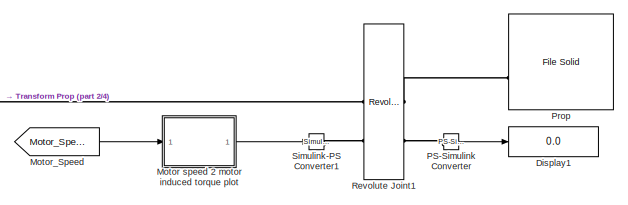
[diagram: root canvas - part 1/4, top center region]
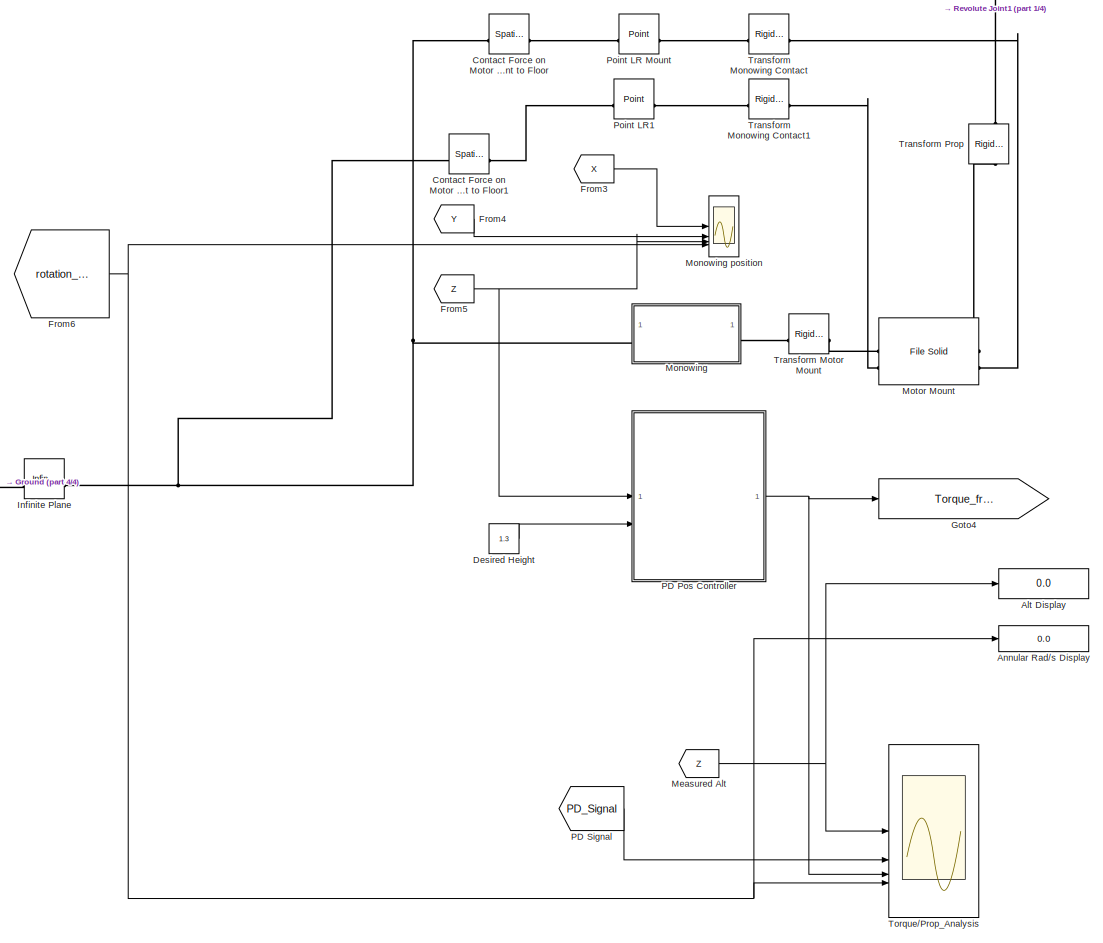
[diagram: root canvas - part 2/4, left side, full height]
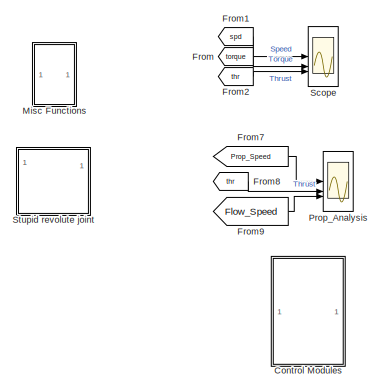
[diagram: root canvas - part 3/4, middle right region]
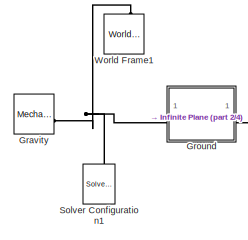
[diagram: root canvas - part 4/4, middle left region]
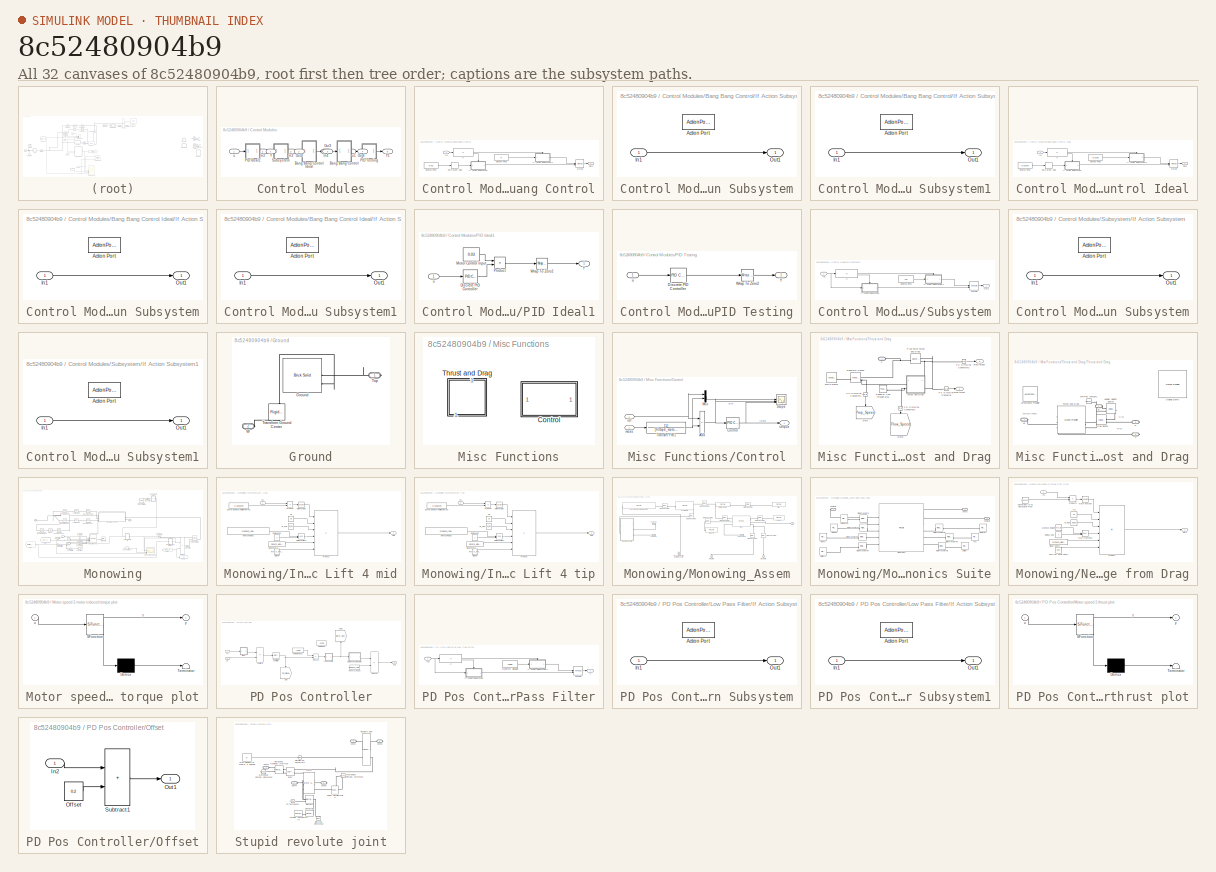
[diagram: thumbnail index - all 32 canvases of the model, root first then tree order]
MODEL slx_8c52480904b9
KIND model
CONFIG AbsTol = 1e-3
CONFIG EnableMultiTasking = off
CONFIG FixedStep = auto
CONFIG MaxStep = 1e-3
CONFIG MinStep = auto
CONFIG RelTol = 1e-3
CONFIG SampleTimeConstraint = Unconstrained
CONFIG SolverName = ode23t
CONFIG StartTime = 0.0
CONFIG StopTime = 10
BLOCK [Display] Alt Display
  Decimation = 1
BLOCK [Display] Annular Rad//s Display
  Decimation = 1
BLOCK [Reference] Contact Force on Motor Mount to Floor  REF=sm_lib/Forces and
Torques/Spatial
Contact Force
  NameLocation = top
  SourceBlock = sm_lib/Forces and\nTorques/Spatial\nContact Force
  SourceType = Spatial\nContact Force
BLOCK [Reference] Contact Force on Motor Mount to Floor1  REF=sm_lib/Forces and
Torques/Spatial
Contact Force
  Commented = on
  NameLocation = top
  SourceBlock = sm_lib/Forces and\nTorques/Spatial\nContact Force
  SourceType = Spatial\nContact Force
BLOCK [SubSystem] Control Modules
BLOCK [SubSystem] Control Modules/Bang Bang Control
BLOCK [SubSystem] Control Modules/Bang Bang Control Ideal
BLOCK [Constant] Control Modules/Bang Bang Control Ideal/Desired RPS1
  Value = -0.01475
BLOCK [Constant] Control Modules/Bang Bang Control Ideal/Desired RPS2
  Value = -0.0145
BLOCK [If] Control Modules/Bang Bang Control Ideal/If
  IfExpression = u1 > 1
BLOCK [SubSystem] Control Modules/Bang Bang Control Ideal/If Action Subsystem
  TreatAsAtomicUnit = on
BLOCK [ActionPort] Control Modules/Bang Bang Control Ideal/If Action Subsystem/Action Port
  ActionPortLabel = else
BLOCK [Inport] Control Modules/Bang Bang Control Ideal/If Action Subsystem/In1
BLOCK [Outport] Control Modules/Bang Bang Control Ideal/If Action Subsystem/Out1
BLOCK [SubSystem] Control Modules/Bang Bang Control Ideal/If Action Subsystem1
  TreatAsAtomicUnit = on
BLOCK [ActionPort] Control Modules/Bang Bang Control Ideal/If Action Subsystem1/Action Port
  ActionPortLabel = if(u1 > 1)
BLOCK [Inport] Control Modules/Bang Bang Control Ideal/If Action Subsystem1/In1
BLOCK [Outport] Control Modules/Bang Bang Control Ideal/If Action Subsystem1/Out1
BLOCK [Inport] Control Modules/Bang Bang Control Ideal/In1
BLOCK [Merge] Control Modules/Bang Bang Control Ideal/Merge
BLOCK [Outport] Control Modules/Bang Bang Control Ideal/Out1
BLOCK [ZeroOrderHold] Control Modules/Bang Bang Control Ideal/Zero-Order Hold
  SampleTime = -1
BLOCK [Constant] Control Modules/Bang Bang Control/Desired RPS1
  Value = -0.02
BLOCK [Constant] Control Modules/Bang Bang Control/Desired RPS2
  Value = 0
BLOCK [If] Control Modules/Bang Bang Control/If
  IfExpression = u1 > 1
BLOCK [SubSystem] Control Modules/Bang Bang Control/If Action Subsystem
  TreatAsAtomicUnit = on
BLOCK [ActionPort] Control Modules/Bang Bang Control/If Action Subsystem/Action Port
  ActionPortLabel = else
BLOCK [Inport] Control Modules/Bang Bang Control/If Action Subsystem/In1
BLOCK [Outport] Control Modules/Bang Bang Control/If Action Subsystem/Out1
BLOCK [SubSystem] Control Modules/Bang Bang Control/If Action Subsystem1
  TreatAsAtomicUnit = on
BLOCK [ActionPort] Control Modules/Bang Bang Control/If Action Subsystem1/Action Port
  ActionPortLabel = if(u1 > 1)
BLOCK [Inport] Control Modules/Bang Bang Control/If Action Subsystem1/In1
BLOCK [Outport] Control Modules/Bang Bang Control/If Action Subsystem1/Out1
BLOCK [Inport] Control Modules/Bang Bang Control/In1
BLOCK [Merge] Control Modules/Bang Bang Control/Merge
BLOCK [Outport] Control Modules/Bang Bang Control/Out1
BLOCK [ZeroOrderHold] Control Modules/Bang Bang Control/Zero-Order Hold
  SampleTime = -1
BLOCK [Inport] Control Modules/In2
  Port = 2
BLOCK [Inport] Control Modules/In3
  Port = 3
BLOCK [Inport] Control Modules/In4
  Port = 4
BLOCK [Outport] Control Modules/Out2
  Port = 2
BLOCK [Outport] Control Modules/Out3
  Port = 3
BLOCK [Outport] Control Modules/Out4
  Port = 4
BLOCK [SubSystem] Control Modules/PID Ideal1
BLOCK [Reference] Control Modules/PID Ideal1/Discrete PID Controller  REF=slpidlib/PID Controller
  LibrarySourceBlock = simulink/Discrete/Discrete PID Controller
  SourceBlock = slpidlib/PID Controller
  SourceType = PID 1dof
BLOCK [Constant] Control Modules/PID Ideal1/Motor Control Input
  Value = 0.03
BLOCK [Product] Control Modules/PID Ideal1/Product
BLOCK [Reference] Control Modules/PID Ideal1/Wrap To Zero2  REF=simulink/Discontinuities/Wrap To Zero
  SourceBlock = simulink/Discontinuities/Wrap To Zero
  SourceType = Wrap To Zero
BLOCK [Outport] Control Modules/PID Ideal1/Y
BLOCK [Inport] Control Modules/PID Ideal1/u
BLOCK [SubSystem] Control Modules/PID Testing
BLOCK [Reference] Control Modules/PID Testing/Discrete PID Controller  REF=slpidlib/PID Controller
  LibrarySourceBlock = simulink/Discrete/Discrete PID Controller
  SourceBlock = slpidlib/PID Controller
  SourceType = PID 1dof
BLOCK [Reference] Control Modules/PID Testing/Wrap To Zero2  REF=simulink/Discontinuities/Wrap To Zero
  SourceBlock = simulink/Discontinuities/Wrap To Zero
  SourceType = Wrap To Zero
BLOCK [Outport] Control Modules/PID Testing/Y
BLOCK [Inport] Control Modules/PID Testing/u
BLOCK [SubSystem] Control Modules/Subsystem
BLOCK [Constant] Control Modules/Subsystem/Desired RPS1
  Value = -10
BLOCK [If] Control Modules/Subsystem/If
  IfExpression = u1<(-40)
BLOCK [SubSystem] Control Modules/Subsystem/If Action Subsystem
  TreatAsAtomicUnit = on
BLOCK [ActionPort] Control Modules/Subsystem/If Action Subsystem/Action Port
  ActionPortLabel = else
BLOCK [Inport] Control Modules/Subsystem/If Action Subsystem/In1
BLOCK [Outport] Control Modules/Subsystem/If Action Subsystem/Out1
BLOCK [SubSystem] Control Modules/Subsystem/If Action Subsystem1
  TreatAsAtomicUnit = on
BLOCK [ActionPort] Control Modules/Subsystem/If Action Subsystem1/Action Port
  ActionPortLabel = if(u1<(-40))
BLOCK [Inport] Control Modules/Subsystem/If Action Subsystem1/In1
BLOCK [Outport] Control Modules/Subsystem/If Action Subsystem1/Out1
BLOCK [Inport] Control Modules/Subsystem/In2
BLOCK [Merge] Control Modules/Subsystem/Merge
BLOCK [Outport] Control Modules/Subsystem/Out1
BLOCK [Outport] Control Modules/Y
BLOCK [Outport] Control Modules/Y1
  Port = 5
BLOCK [Inport] Control Modules/u
BLOCK [Inport] Control Modules/u1
  Port = 5
BLOCK [Constant] Desired Height
  Value = 1.3
BLOCK [Display] Display1
  Decimation = 1
BLOCK [From] From
  GotoTag = torque
BLOCK [From] From1
  GotoTag = spd
BLOCK [From] From2
  GotoTag = thr
BLOCK [From] From3
  GotoTag = X
  TagVisibility = global
BLOCK [From] From4
  GotoTag = Y
  TagVisibility = global
BLOCK [From] From5
  GotoTag = Z
  TagVisibility = global
BLOCK [From] From6
  GotoTag = rotation_abt_z
  TagVisibility = global
BLOCK [From] From7
  GotoTag = Prop_Speed
BLOCK [From] From8
  GotoTag = thr
BLOCK [From] From9
  GotoTag = Flow_Speed
BLOCK [Goto] Goto4
  GotoTag = Torque_from_Motor
  TagVisibility = global
BLOCK [Reference] Gravity  REF=sm_lib/Utilities/Mechanism
Configuration
  SourceBlock = sm_lib/Utilities/Mechanism\nConfiguration
  SourceType = Mechanism\nConfiguration
BLOCK [SubSystem] Ground
BLOCK [Reference] Ground/Ground  REF=sm_lib/Body Elements/Brick Solid
  SourceBlock = sm_lib/Body Elements/Brick Solid
  SourceType = Brick Solid
BLOCK [PMIOPort] Ground/Top
  Side = Right
BLOCK [Reference] Ground/Transform Ground Center  REF=sm_lib/Frames and
Transforms/Rigid
Transform
  NameLocation = right
  SourceBlock = sm_lib/Frames and\nTransforms/Rigid\nTransform
  SourceType = Rigid\nTransform
BLOCK [PMIOPort] Ground/W
  Port = 2
  Side = Left
BLOCK [Reference] Infinite Plane  REF=sm_lib/Curves and Surfaces/Infinite Plane
  SourceBlock = sm_lib/Curves and Surfaces/Infinite Plane
  SourceType = Infinite Plane
BLOCK [From] Measured Alt
  GotoTag = Z
  TagVisibility = global
BLOCK [SubSystem] Misc Functions
BLOCK [SubSystem] Misc Functions/Control
  Commented = on
  NameLocation = top
BLOCK [Sum] Misc Functions/Control/Add
  IconShape = rectangular
  Inputs = +-
BLOCK [Reference] Misc Functions/Control/Control  REF=slpidlib/PID Controller
  SourceBlock = slpidlib/PID Controller
  SourceType = PID 1dof
BLOCK [Mux] Misc Functions/Control/Mux
  DisplayOption = bar
  Inputs = 2
BLOCK [Scope] Misc Functions/Control/Scope
  Floating = off
  NumInputPorts = 3
  ScopeSpecificationString = Simulink.scopes.TimeScopeBlockCfg('CurrentConfiguration', extmgr.ConfigurationSet(extmgr.Configuration('Core','General UI',true),extmgr.Configuration('Core','Source UI',true),extmgr.Configuration('Sources','WiredSimulink',true,'DataLoggingVariableName','ScopeData3'),extmgr.Configuration('Visuals','Time Domain',true,'SerializedDisplays',{struct('MinYLimReal','-51413.90485','MaxYLimReal','107953.943...<+2752ch>
BLOCK [TransferFcn] Misc Functions/Control/Transfer Fcn1
  Denominator = [filtSpd_motor 1]
  ParameterTunability = Optimized
BLOCK [Inport] Misc Functions/Control/meas
  Port = 2
BLOCK [Inport] Misc Functions/Control/ref
BLOCK [Outport] Misc Functions/Control/torque
BLOCK [SubSystem] Misc Functions/Thrust and Drag
  Commented = on
  NameLocation = left
BLOCK [PMIOPort] Misc Functions/Thrust and Drag/F
  Side = Left
BLOCK [Goto] Misc Functions/Thrust and Drag/Goto
  GotoTag = Prop_Speed
  NameLocation = left
  TagVisibility = global
BLOCK [Goto] Misc Functions/Thrust and Drag/Goto1
  GotoTag = Flow_Speed
  NameLocation = left
  TagVisibility = global
BLOCK [Reference] Misc Functions/Thrust and Drag/PS-Simulink Converter  REF=nesl_utility/PS-Simulink
Converter
  SourceBlock = nesl_utility/PS-Simulink\nConverter
  SourceType = PS-Simulink\nConverter
BLOCK [Reference] Misc Functions/Thrust and Drag/PS-Simulink Converter1  REF=nesl_utility/PS-Simulink
Converter
  NameLocation = left
  SourceBlock = nesl_utility/PS-Simulink\nConverter
  SourceType = PS-Simulink\nConverter
BLOCK [Reference] Misc Functions/Thrust and Drag/PS-Simulink Converter2  REF=nesl_utility/PS-Simulink
Converter
  NameLocation = left
  SourceBlock = nesl_utility/PS-Simulink\nConverter
  SourceType = PS-Simulink\nConverter
BLOCK [Reference] Misc Functions/Thrust and Drag/PS-Simulink Converter3  REF=nesl_utility/PS-Simulink
Converter
  SourceBlock = nesl_utility/PS-Simulink\nConverter
  SourceType = PS-Simulink\nConverter
BLOCK [Reference] Misc Functions/Thrust and Drag/Prop Force Thrust and Drag  REF=sm_lib/Forces and
Torques/External Force
and Torque
  Commented = on
  SourceBlock = sm_lib/Forces and\nTorques/External Force\nand Torque
  SourceType = External Force\nand Torque
BLOCK [Reference] Misc Functions/Thrust and Drag/Speed of flow through prop  REF=fl_lib/Physical Signals/Sources/PS Constant
  SourceBlock = fl_lib/Physical Signals/Sources/PS Constant
  SourceType = PS Constant
BLOCK [SubSystem] Misc Functions/Thrust and Drag/Thrust and Drag
  AncestorBlock = quadcopter_library/Propeller/Thrust and Drag
  LibrarySourceBlock = quadcopter_library/Propeller/Thrust and Drag
BLOCK [Reference] Misc Functions/Thrust and Drag/Thrust and Drag/Aerodynamic Propeller  REF=sdl_lib/Engines & Motors/Aerodynamic
Propeller
  Commented = on
  NameLocation = top
  SourceBlock = sdl_lib/Engines & Motors/Aerodynamic\nPropeller
  SourceType = Aerodynamic\nPropeller
BLOCK [Reference] Misc Functions/Thrust and Drag/Thrust and Drag/Angular Velocity Source  REF=fl_lib/Mechanical/Mechanical Sources/Ideal Angular
Velocity Source
  NameLocation = top
  SourceBlock = fl_lib/Mechanical/Mechanical Sources/Ideal Angular\nVelocity Source
  SourceType = Ideal Angular\nVelocity Source
BLOCK [Reference] Misc Functions/Thrust and Drag/Thrust and Drag/Drag Sensor  REF=fl_lib/Mechanical/Mechanical Sensors/Ideal Torque Sensor
  SourceBlock = fl_lib/Mechanical/Mechanical Sensors/Ideal Torque Sensor
  SourceType = Ideal Torque Sensor
BLOCK [Reference] Misc Functions/Thrust and Drag/Thrust and Drag/MRRef IPMSM1  REF=fl_lib/Mechanical/Rotational Elements/Mechanical
Rotational Reference
  SourceBlock = fl_lib/Mechanical/Rotational Elements/Mechanical\nRotational Reference
  SourceType = Mechanical\nRotational Reference
BLOCK [Reference] Misc Functions/Thrust and Drag/Thrust and Drag/Original Demo  REF=sdl_lib/Engines & Motors/Marine Propeller
  Commented = on
  SourceBlock = sdl_lib/Engines & Motors/Marine Propeller
  SourceType = Marine Propeller
BLOCK [PMIOPort] Misc Functions/Thrust and Drag/Thrust and Drag/Q
  Port = 3
  Side = Right
BLOCK [Reference] Misc Functions/Thrust and Drag/Thrust and Drag/Thrust and Drag  REF=sdl_lib/Engines & Motors/Marine Propeller
  SourceBlock = sdl_lib/Engines & Motors/Marine Propeller
  SourceType = Marine Propeller
BLOCK [PMIOPort] Misc Functions/Thrust and Drag/Thrust and Drag/Va
  Port = 2
  Side = Left
BLOCK [PMIOPort] Misc Functions/Thrust and Drag/Thrust and Drag/t
  Port = 4
  Side = Right
BLOCK [PMIOPort] Misc Functions/Thrust and Drag/Thrust and Drag/w
  NameLocation = top
  Side = Left
BLOCK [Reference] Misc Functions/Thrust and Drag/Transform Sensor  REF=sm_lib/Frames and
Transforms/Transform
Sensor
  SourceBlock = sm_lib/Frames and\nTransforms/Transform\nSensor
  SourceType = Transform\nSensor
BLOCK [Reference] Misc Functions/Thrust and Drag/World Frame  REF=sm_lib/Frames and
Transforms/World Frame
  SourceBlock = sm_lib/Frames and\nTransforms/World Frame
  SourceType = World Frame
BLOCK [Outport] Misc Functions/Thrust and Drag/prop thrust
BLOCK [Outport] Misc Functions/Thrust and Drag/prop torque
  Port = 2
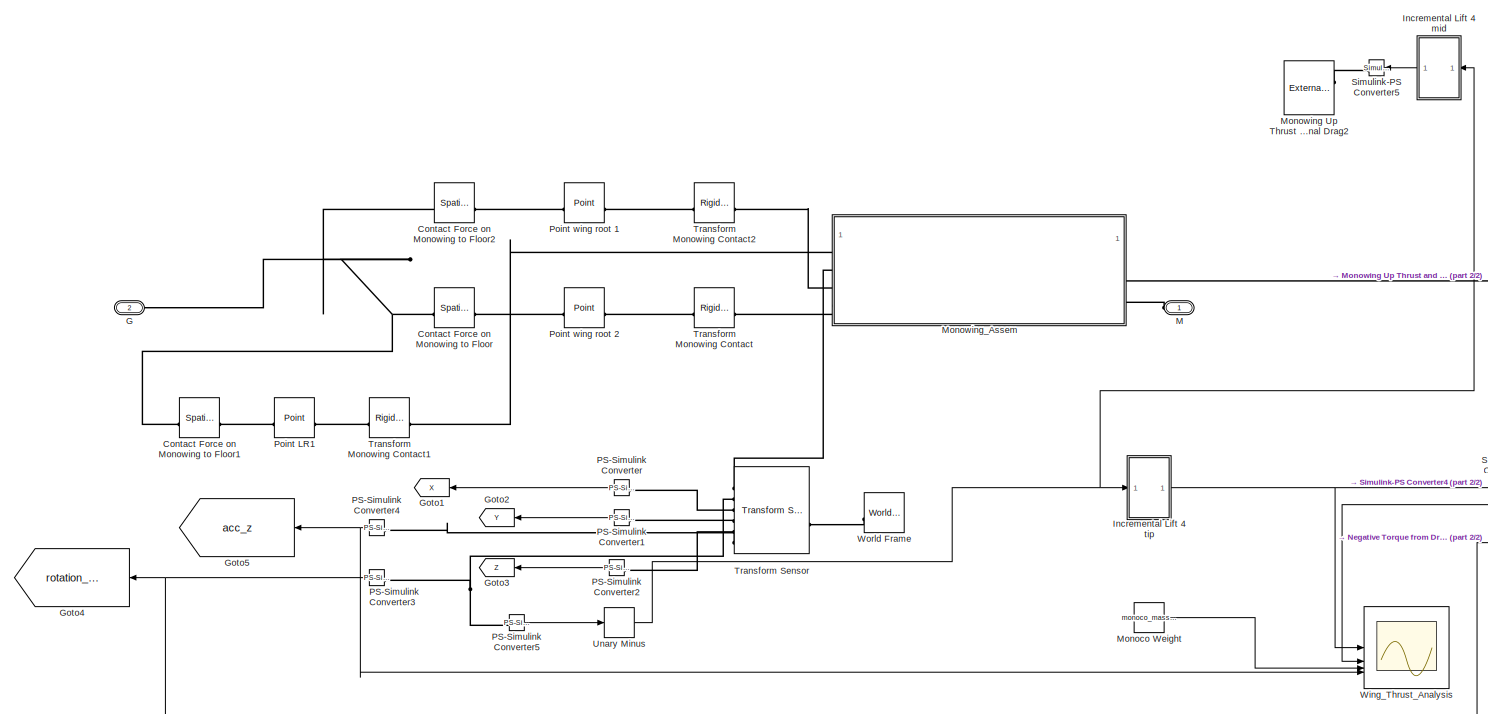
[diagram: Monowing - part 1/2, most of the canvas]
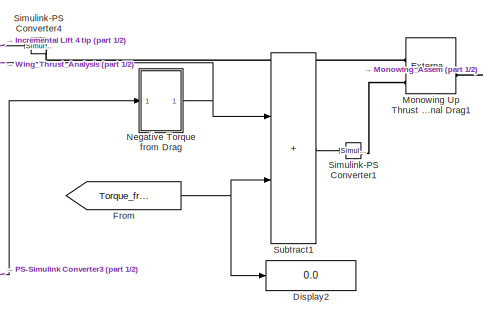
[diagram: Monowing - part 2/2, bottom right region]
BLOCK [SubSystem] Monowing
  NameLocation = top
BLOCK [Scope] Monowing position
  Floating = off
  NumInputPorts = 4
  ScopeSpecificationString = Simulink.scopes.TimeScopeBlockCfg('CurrentConfiguration', extmgr.ConfigurationSet(extmgr.Configuration('Core','General UI',true),extmgr.Configuration('Core','Source UI',true),extmgr.Configuration('Sources','WiredSimulink',true,'DataLoggingVariableName','ScopeData3'),extmgr.Configuration('Visuals','Time Domain',true,'SerializedDisplays',{struct('MinYLimReal','-30','MaxYLimReal','30','YLabelReal','X...<+5806ch>
BLOCK [Reference] Monowing/Contact Force on Monowing to Floor  REF=sm_lib/Forces and
Torques/Spatial
Contact Force
  NameLocation = top
  SourceBlock = sm_lib/Forces and\nTorques/Spatial\nContact Force
  SourceType = Spatial\nContact Force
BLOCK [Reference] Monowing/Contact Force on Monowing to Floor1  REF=sm_lib/Forces and
Torques/Spatial
Contact Force
  Commented = on
  NameLocation = top
  SourceBlock = sm_lib/Forces and\nTorques/Spatial\nContact Force
  SourceType = Spatial\nContact Force
BLOCK [Reference] Monowing/Contact Force on Monowing to Floor2  REF=sm_lib/Forces and
Torques/Spatial
Contact Force
  NameLocation = top
  SourceBlock = sm_lib/Forces and\nTorques/Spatial\nContact Force
  SourceType = Spatial\nContact Force
BLOCK [Display] Monowing/Display2
  Decimation = 1
BLOCK [From] Monowing/From
  GotoTag = Torque_from_Motor
  TagVisibility = global
BLOCK [PMIOPort] Monowing/G
  NameLocation = top
  Port = 2
  Side = Right
BLOCK [Goto] Monowing/Goto1
  GotoTag = X
  NameLocation = top
  TagVisibility = global
BLOCK [Goto] Monowing/Goto2
  GotoTag = Y
  NameLocation = top
  TagVisibility = global
BLOCK [Goto] Monowing/Goto3
  GotoTag = Z
  NameLocation = top
  TagVisibility = global
BLOCK [Goto] Monowing/Goto4
  GotoTag = rotation_abt_z
  NameLocation = top
  TagVisibility = global
BLOCK [Goto] Monowing/Goto5
  GotoTag = acc_z
  NameLocation = top
  TagVisibility = global
BLOCK [SubSystem] Monowing/Incremental Lift 4 mid
  Commented = on
  NameLocation = top
BLOCK [Constant] Monowing/Incremental Lift 4 mid/1//8
  NameLocation = left
  Value = 1/6
BLOCK [Constant] Monowing/Incremental Lift 4 mid/Air_Rho
  NameLocation = left
  Value = air_rho
BLOCK [Constant] Monowing/Incremental Lift 4 mid/Blade Chord
  NameLocation = left
  Value = monoco_wing_area/monoco_radius
BLOCK [Constant] Monowing/Incremental Lift 4 mid/Conversion to Hz (Rotational Freq)
  NameLocation = left
  Value = 0.1591549
BLOCK [Inport] Monowing/Incremental Lift 4 mid/In1
BLOCK [Constant] Monowing/Incremental Lift 4 mid/Lift Coeff
  NameLocation = left
  Value = monoco_wing.CL
BLOCK [Math] Monowing/Incremental Lift 4 mid/Math Function
  Operator = square
BLOCK [Math] Monowing/Incremental Lift 4 mid/Math Function1
  Operator = pow
BLOCK [Constant] Monowing/Incremental Lift 4 mid/Monoco Radius
  NameLocation = left
  Value = monoco_radius-0.176-0.201
BLOCK [Outport] Monowing/Incremental Lift 4 mid/Out1
BLOCK [Product] Monowing/Incremental Lift 4 mid/Product
  Inputs = 6
BLOCK [Product] Monowing/Incremental Lift 4 mid/Product1
BLOCK [Constant] Monowing/Incremental Lift 4 mid/Radius pow
  NameLocation = left
  Value = 3
BLOCK [SubSystem] Monowing/Incremental Lift 4 tip
BLOCK [Constant] Monowing/Incremental Lift 4 tip/1//8
  NameLocation = left
  Value = 1/6
BLOCK [Constant] Monowing/Incremental Lift 4 tip/Air_Rho
  NameLocation = left
  Value = air_rho
BLOCK [Constant] Monowing/Incremental Lift 4 tip/Blade Chord
  NameLocation = left
  Value = monoco_wing_area/monoco_radius
BLOCK [Constant] Monowing/Incremental Lift 4 tip/Conversion to Hz (Rotational Freq)
  NameLocation = left
  Value = 0.1591549
BLOCK [Inport] Monowing/Incremental Lift 4 tip/In1
BLOCK [Constant] Monowing/Incremental Lift 4 tip/Lift Coeff
  NameLocation = left
  Value = monoco_wing.CL
BLOCK [Math] Monowing/Incremental Lift 4 tip/Math Function
  Operator = square
BLOCK [Math] Monowing/Incremental Lift 4 tip/Math Function1
  Operator = pow
BLOCK [Constant] Monowing/Incremental Lift 4 tip/Monoco Radius
  NameLocation = left
  Value = monoco_radius-0.176
BLOCK [Outport] Monowing/Incremental Lift 4 tip/Out1
BLOCK [Product] Monowing/Incremental Lift 4 tip/Product
  Inputs = 6
BLOCK [Product] Monowing/Incremental Lift 4 tip/Product1
BLOCK [Constant] Monowing/Incremental Lift 4 tip/Radius pow
  NameLocation = left
  Value = 3
BLOCK [PMIOPort] Monowing/M
  NameLocation = top
  Side = Left
BLOCK [Constant] Monowing/Monoco Weight
  Value = monoco_mass*9.81
BLOCK [Reference] Monowing/Monowing Up Thrust and Horizonal Drag1  REF=sm_lib/Forces and
Torques/External Force
and Torque
  NameLocation = top
  SourceBlock = sm_lib/Forces and\nTorques/External Force\nand Torque
  SourceType = External Force\nand Torque
BLOCK [Reference] Monowing/Monowing Up Thrust and Horizonal Drag2  REF=sm_lib/Forces and
Torques/External Force
and Torque
  Commented = on
  SourceBlock = sm_lib/Forces and\nTorques/External Force\nand Torque
  SourceType = External Force\nand Torque
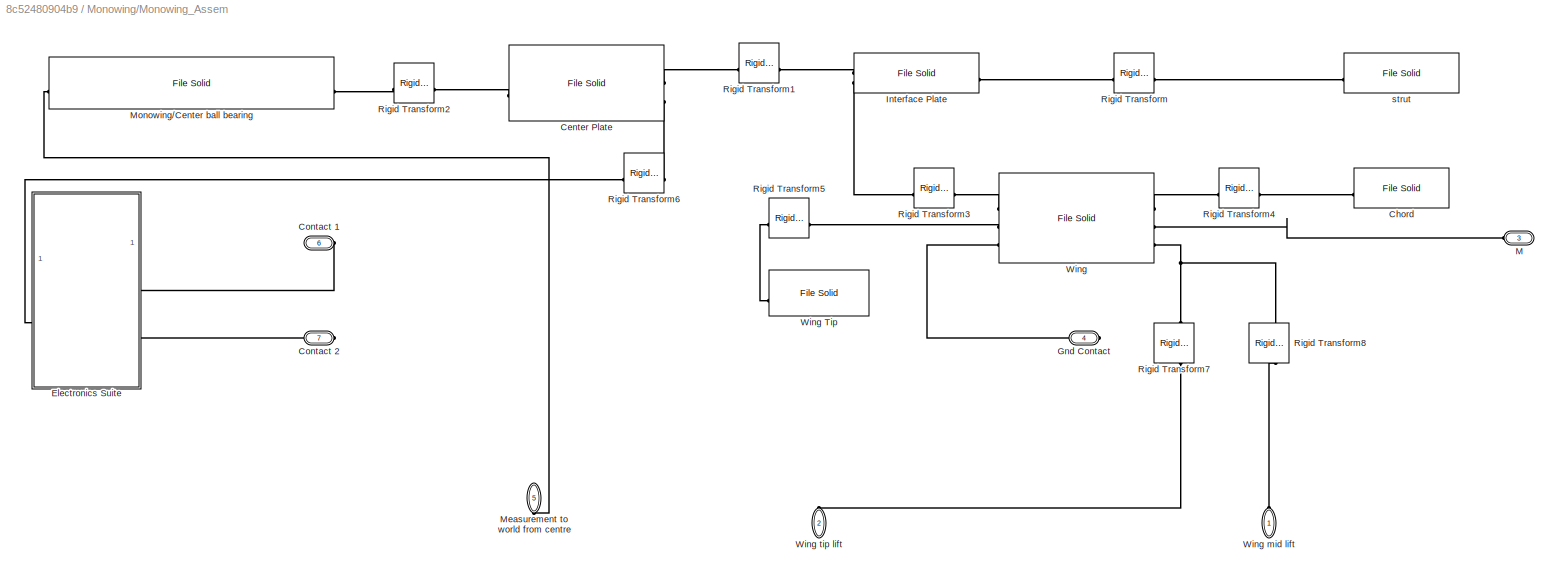
BLOCK [SubSystem] Monowing/Monowing_Assem
  NameLocation = top
BLOCK [Reference] Monowing/Monowing_Assem/ strut  REF=sm_lib/Body Elements/File Solid
  SourceBlock = sm_lib/Body Elements/File Solid
  SourceType = File Solid
BLOCK [Reference] Monowing/Monowing_Assem/Center Plate  REF=sm_lib/Body Elements/File Solid
  NameLocation = top
  SourceBlock = sm_lib/Body Elements/File Solid
  SourceType = File Solid
BLOCK [Reference] Monowing/Monowing_Assem/Chord  REF=sm_lib/Body Elements/File Solid
  SourceBlock = sm_lib/Body Elements/File Solid
  SourceType = File Solid
BLOCK [PMIOPort] Monowing/Monowing_Assem/Contact 1
  NameLocation = top
  Port = 6
  Side = Right
BLOCK [PMIOPort] Monowing/Monowing_Assem/Contact 2
  NameLocation = top
  Port = 7
  Side = Right
BLOCK [SubSystem] Monowing/Monowing_Assem/Electronics Suite
BLOCK [Reference] Monowing/Monowing_Assem/Electronics Suite/Battery  REF=sm_lib/Body Elements/File Solid
  Commented = on
  SourceBlock = sm_lib/Body Elements/File Solid
  SourceType = File Solid
BLOCK [Reference] Monowing/Monowing_Assem/Electronics Suite/Battery1  REF=sm_lib/Body Elements/File Solid
  Commented = on
  NameLocation = top
  SourceBlock = sm_lib/Body Elements/File Solid
  SourceType = File Solid
BLOCK [PMIOPort] Monowing/Monowing_Assem/Electronics Suite/Conn2
  Port = 2
  Side = Left
BLOCK [PMIOPort] Monowing/Monowing_Assem/Electronics Suite/Contact 1
  Side = Right
BLOCK [PMIOPort] Monowing/Monowing_Assem/Electronics Suite/Contact 2
  NameLocation = top
  Port = 3
  Side = Right
BLOCK [Reference] Monowing/Monowing_Assem/Electronics Suite/Electronics  REF=sm_lib/Body Elements/File Solid
  NameLocation = top
  SourceBlock = sm_lib/Body Elements/File Solid
  SourceType = File Solid
BLOCK [Reference] Monowing/Monowing_Assem/Electronics Suite/Rigid Transform  REF=sm_lib/Frames and
Transforms/Rigid
Transform
  Commented = on
  NameLocation = top
  SourceBlock = sm_lib/Frames and\nTransforms/Rigid\nTransform
  SourceType = Rigid\nTransform
BLOCK [Reference] Monowing/Monowing_Assem/Electronics Suite/Rigid Transform1  REF=sm_lib/Frames and
Transforms/Rigid
Transform
  Commented = on
  NameLocation = top
  SourceBlock = sm_lib/Frames and\nTransforms/Rigid\nTransform
  SourceType = Rigid\nTransform
BLOCK [Reference] Monowing/Monowing_Assem/Electronics Suite/Rigid Transform2  REF=sm_lib/Frames and
Transforms/Rigid
Transform
  Commented = on
  SourceBlock = sm_lib/Frames and\nTransforms/Rigid\nTransform
  SourceType = Rigid\nTransform
BLOCK [Reference] Monowing/Monowing_Assem/Electronics Suite/Rigid Transform3  REF=sm_lib/Frames and
Transforms/Rigid
Transform
  Commented = on
  SourceBlock = sm_lib/Frames and\nTransforms/Rigid\nTransform
  SourceType = Rigid\nTransform
BLOCK [Reference] Monowing/Monowing_Assem/Electronics Suite/Rigid Transform4  REF=sm_lib/Frames and
Transforms/Rigid
Transform
  Commented = on
  NameLocation = top
  SourceBlock = sm_lib/Frames and\nTransforms/Rigid\nTransform
  SourceType = Rigid\nTransform
BLOCK [Reference] Monowing/Monowing_Assem/Electronics Suite/Rigid Transform5  REF=sm_lib/Frames and
Transforms/Rigid
Transform
  Commented = on
  SourceBlock = sm_lib/Frames and\nTransforms/Rigid\nTransform
  SourceType = Rigid\nTransform
BLOCK [Reference] Monowing/Monowing_Assem/Electronics Suite/Rigid Transform6  REF=sm_lib/Frames and
Transforms/Rigid
Transform
  Commented = on
  NameLocation = top
  SourceBlock = sm_lib/Frames and\nTransforms/Rigid\nTransform
  SourceType = Rigid\nTransform
BLOCK [Reference] Monowing/Monowing_Assem/Electronics Suite/esc  REF=sm_lib/Body Elements/File Solid
  Commented = on
  SourceBlock = sm_lib/Body Elements/File Solid
  SourceType = File Solid
BLOCK [Reference] Monowing/Monowing_Assem/Electronics Suite/teensy  REF=sm_lib/Body Elements/File Solid
  Commented = on
  NameLocation = top
  SourceBlock = sm_lib/Body Elements/File Solid
  SourceType = File Solid
BLOCK [Reference] Monowing/Monowing_Assem/Electronics Suite/telem rect  REF=sm_lib/Body Elements/File Solid
  Commented = on
  SourceBlock = sm_lib/Body Elements/File Solid
  SourceType = File Solid
BLOCK [Reference] Monowing/Monowing_Assem/Electronics Suite/telem sq  REF=sm_lib/Body Elements/File Solid
  Commented = on
  NameLocation = top
  SourceBlock = sm_lib/Body Elements/File Solid
  SourceType = File Solid
BLOCK [Reference] Monowing/Monowing_Assem/Electronics Suite/voltage reg  REF=sm_lib/Body Elements/File Solid
  Commented = on
  NameLocation = top
  SourceBlock = sm_lib/Body Elements/File Solid
  SourceType = File Solid
BLOCK [PMIOPort] Monowing/Monowing_Assem/Gnd Contact
  NameLocation = top
  Port = 4
  Side = Right
BLOCK [Reference] Monowing/Monowing_Assem/Interface Plate  REF=sm_lib/Body Elements/File Solid
  SourceBlock = sm_lib/Body Elements/File Solid
  SourceType = File Solid
BLOCK [PMIOPort] Monowing/Monowing_Assem/M
  NameLocation = top
  Port = 3
  Side = Left
BLOCK [PMIOPort] Monowing/Monowing_Assem/Measurement to world from centre
  NameLocation = right
  Port = 5
  Side = Right
BLOCK [Reference] Monowing/Monowing_Assem/Monowing//Center ball bearing  REF=sm_lib/Body Elements/File Solid
  SourceBlock = sm_lib/Body Elements/File Solid
  SourceType = File Solid
BLOCK [Reference] Monowing/Monowing_Assem/Rigid Transform  REF=sm_lib/Frames and
Transforms/Rigid
Transform
  SourceBlock = sm_lib/Frames and\nTransforms/Rigid\nTransform
  SourceType = Rigid\nTransform
BLOCK [Reference] Monowing/Monowing_Assem/Rigid Transform1  REF=sm_lib/Frames and
Transforms/Rigid
Transform
  SourceBlock = sm_lib/Frames and\nTransforms/Rigid\nTransform
  SourceType = Rigid\nTransform
BLOCK [Reference] Monowing/Monowing_Assem/Rigid Transform2  REF=sm_lib/Frames and
Transforms/Rigid
Transform
  SourceBlock = sm_lib/Frames and\nTransforms/Rigid\nTransform
  SourceType = Rigid\nTransform
BLOCK [Reference] Monowing/Monowing_Assem/Rigid Transform3  REF=sm_lib/Frames and
Transforms/Rigid
Transform
  SourceBlock = sm_lib/Frames and\nTransforms/Rigid\nTransform
  SourceType = Rigid\nTransform
BLOCK [Reference] Monowing/Monowing_Assem/Rigid Transform4  REF=sm_lib/Frames and
Transforms/Rigid
Transform
  SourceBlock = sm_lib/Frames and\nTransforms/Rigid\nTransform
  SourceType = Rigid\nTransform
BLOCK [Reference] Monowing/Monowing_Assem/Rigid Transform5  REF=sm_lib/Frames and
Transforms/Rigid
Transform
  NameLocation = top
  SourceBlock = sm_lib/Frames and\nTransforms/Rigid\nTransform
  SourceType = Rigid\nTransform
BLOCK [Reference] Monowing/Monowing_Assem/Rigid Transform6  REF=sm_lib/Frames and
Transforms/Rigid
Transform
  NameLocation = top
  SourceBlock = sm_lib/Frames and\nTransforms/Rigid\nTransform
  SourceType = Rigid\nTransform
BLOCK [Reference] Monowing/Monowing_Assem/Rigid Transform7  REF=sm_lib/Frames and
Transforms/Rigid
Transform
  NameLocation = left
  SourceBlock = sm_lib/Frames and\nTransforms/Rigid\nTransform
  SourceType = Rigid\nTransform
BLOCK [Reference] Monowing/Monowing_Assem/Rigid Transform8  REF=sm_lib/Frames and
Transforms/Rigid
Transform
  NameLocation = left
  SourceBlock = sm_lib/Frames and\nTransforms/Rigid\nTransform
  SourceType = Rigid\nTransform
BLOCK [Reference] Monowing/Monowing_Assem/Wing  REF=sm_lib/Body Elements/File Solid
  SourceBlock = sm_lib/Body Elements/File Solid
  SourceType = File Solid
BLOCK [Reference] Monowing/Monowing_Assem/Wing Tip  REF=sm_lib/Body Elements/File Solid
  SourceBlock = sm_lib/Body Elements/File Solid
  SourceType = File Solid
BLOCK [PMIOPort] Monowing/Monowing_Assem/Wing mid lift
  NameLocation = right
  Side = Left
BLOCK [PMIOPort] Monowing/Monowing_Assem/Wing tip lift
  NameLocation = right
  Port = 2
  Side = Left
BLOCK [SubSystem] Monowing/Negative Torque from Drag
BLOCK [Constant] Monowing/Negative Torque from Drag/1//8
  NameLocation = left
  Value = 1/8
BLOCK [Constant] Monowing/Negative Torque from Drag/Air_Rho
  NameLocation = left
  Value = air_rho
BLOCK [Constant] Monowing/Negative Torque from Drag/Blade Chord
  NameLocation = left
  Value = monoco_wing_area/monoco_radius
BLOCK [Constant] Monowing/Negative Torque from Drag/Conversion to Hz (Rotational Freq)
  NameLocation = left
  Value = 0.1591549
BLOCK [Inport] Monowing/Negative Torque from Drag/In1
BLOCK [Math] Monowing/Negative Torque from Drag/Math Function
  Operator = square
BLOCK [Math] Monowing/Negative Torque from Drag/Math Function1
  Operator = pow
BLOCK [Constant] Monowing/Negative Torque from Drag/Monoco Radius
  NameLocation = left
  Value = monoco_radius
BLOCK [Outport] Monowing/Negative Torque from Drag/Out1
BLOCK [Product] Monowing/Negative Torque from Drag/Product
  Inputs = 6
BLOCK [Product] Monowing/Negative Torque from Drag/Product1
BLOCK [Constant] Monowing/Negative Torque from Drag/Radius pow
  NameLocation = left
  Value = 4
BLOCK [Constant] Monowing/Negative Torque from Drag/Zero Lift Drag Coeff
  NameLocation = left
  Value = CDO
BLOCK [Reference] Monowing/PS-Simulink Converter  REF=nesl_utility/PS-Simulink
Converter
  NameLocation = top
  SourceBlock = nesl_utility/PS-Simulink\nConverter
  SourceType = PS-Simulink\nConverter
BLOCK [Reference] Monowing/PS-Simulink Converter1  REF=nesl_utility/PS-Simulink
Converter
  NameLocation = top
  SourceBlock = nesl_utility/PS-Simulink\nConverter
  SourceType = PS-Simulink\nConverter
BLOCK [Reference] Monowing/PS-Simulink Converter2  REF=nesl_utility/PS-Simulink
Converter
  NameLocation = top
  SourceBlock = nesl_utility/PS-Simulink\nConverter
  SourceType = PS-Simulink\nConverter
BLOCK [Reference] Monowing/PS-Simulink Converter3  REF=nesl_utility/PS-Simulink
Converter
  NameLocation = top
  SourceBlock = nesl_utility/PS-Simulink\nConverter
  SourceType = PS-Simulink\nConverter
BLOCK [Reference] Monowing/PS-Simulink Converter4  REF=nesl_utility/PS-Simulink
Converter
  NameLocation = top
  SourceBlock = nesl_utility/PS-Simulink\nConverter
  SourceType = PS-Simulink\nConverter
BLOCK [Reference] Monowing/PS-Simulink Converter5  REF=nesl_utility/PS-Simulink
Converter
  SourceBlock = nesl_utility/PS-Simulink\nConverter
  SourceType = PS-Simulink\nConverter
BLOCK [Reference] Monowing/Point LR1  REF=sm_lib/Curves and Surfaces/Point
  Commented = on
  NameLocation = top
  SourceBlock = sm_lib/Curves and Surfaces/Point
  SourceType = Point
BLOCK [Reference] Monowing/Point wing root 1  REF=sm_lib/Curves and Surfaces/Point
  NameLocation = top
  SourceBlock = sm_lib/Curves and Surfaces/Point
  SourceType = Point
BLOCK [Reference] Monowing/Point wing root 2  REF=sm_lib/Curves and Surfaces/Point
  NameLocation = top
  SourceBlock = sm_lib/Curves and Surfaces/Point
  SourceType = Point
BLOCK [Reference] Monowing/Simulink-PS Converter1  REF=nesl_utility/Simulink-PS
Converter
  SourceBlock = nesl_utility/Simulink-PS\nConverter
  SourceType = Simulink-PS\nConverter
BLOCK [Reference] Monowing/Simulink-PS Converter4  REF=nesl_utility/Simulink-PS
Converter
  SourceBlock = nesl_utility/Simulink-PS\nConverter
  SourceType = Simulink-PS\nConverter
BLOCK [Reference] Monowing/Simulink-PS Converter5  REF=nesl_utility/Simulink-PS
Converter
  Commented = on
  NameLocation = top
  SourceBlock = nesl_utility/Simulink-PS\nConverter
  SourceType = Simulink-PS\nConverter
BLOCK [Sum] Monowing/Subtract1
  IconShape = rectangular
BLOCK [Reference] Monowing/Transform Monowing Contact  REF=sm_lib/Frames and
Transforms/Rigid
Transform
  NameLocation = top
  SourceBlock = sm_lib/Frames and\nTransforms/Rigid\nTransform
  SourceType = Rigid\nTransform
BLOCK [Reference] Monowing/Transform Monowing Contact1  REF=sm_lib/Frames and
Transforms/Rigid
Transform
  Commented = on
  NameLocation = top
  SourceBlock = sm_lib/Frames and\nTransforms/Rigid\nTransform
  SourceType = Rigid\nTransform
BLOCK [Reference] Monowing/Transform Monowing Contact2  REF=sm_lib/Frames and
Transforms/Rigid
Transform
  NameLocation = top
  SourceBlock = sm_lib/Frames and\nTransforms/Rigid\nTransform
  SourceType = Rigid\nTransform
BLOCK [Reference] Monowing/Transform Sensor  REF=sm_lib/Frames and
Transforms/Transform
Sensor
  NameLocation = top
  SourceBlock = sm_lib/Frames and\nTransforms/Transform\nSensor
  SourceType = Transform\nSensor
BLOCK [UnaryMinus] Monowing/Unary Minus
BLOCK [Scope] Monowing/Wing_Thrust_Analysis
  Floating = off
  NumInputPorts = 4
  ScopeSpecificationString = Simulink.scopes.TimeScopeBlockCfg('CurrentConfiguration', extmgr.ConfigurationSet(extmgr.Configuration('Core','General UI',true),extmgr.Configuration('Core','Source UI',true),extmgr.Configuration('Sources','WiredSimulink',true,'DataLoggingVariableName','ScopeData2'),extmgr.Configuration('Visuals','Time Domain',true,'SerializedDisplays',{struct('MinYLimReal','0','MaxYLimReal','1.6','YLabelReal','Li...<+5856ch>
BLOCK [Reference] Monowing/World Frame  REF=sm_lib/Frames and
Transforms/World Frame
  NameLocation = top
  SourceBlock = sm_lib/Frames and\nTransforms/World Frame
  SourceType = World Frame
BLOCK [Reference] Motor Mount  REF=sm_lib/Body Elements/File Solid
  SourceBlock = sm_lib/Body Elements/File Solid
  SourceType = File Solid
BLOCK [SubSystem] Motor speed 2 motor induced torque plot
  ErrorFcn = Stateflow.Translate.translate
  LibrarySourceBlock = simulink/User-Defined\nFunctions/MATLAB Function
  PermitHierarchicalResolution = ExplicitOnly
  SFBlockType = MATLAB Function
  TreatAsAtomicUnit = on
BLOCK [Demux] Motor speed 2 motor induced torque plot/ Demux 
  Outputs = 1
BLOCK [S-Function] Motor speed 2 motor induced torque plot/ SFunction 
  EnableBusSupport = on
  FunctionName = sf_sfun
  PortCounts = [1 2]
  SFcnIsStateOwnerBlock = off
  SFunctionDeploymentMode = off
  Tag = Stateflow S-Function 1
BLOCK [Terminator] Motor speed 2 motor induced torque plot/ Terminator 
BLOCK [Inport] Motor speed 2 motor induced torque plot/u
BLOCK [Outport] Motor speed 2 motor induced torque plot/y
BLOCK [From] Motor_Speed
  GotoTag = Motor_Speed
  TagVisibility = global
BLOCK [SubSystem] PD Pos Controller
BLOCK [Reference] PD Pos Controller/Discrete PD Controller  REF=slpidlib/PID Controller
  LibrarySourceBlock = simulink/Discrete/Discrete PID Controller
  SourceBlock = slpidlib/PID Controller
  SourceType = PID 1dof
BLOCK [Goto] PD Pos Controller/Goto
  GotoTag = PD_Signal
  NameLocation = left
  TagVisibility = global
BLOCK [Goto] PD Pos Controller/Goto1
  GotoTag = Motor_Speed
  NameLocation = right
  TagVisibility = global
BLOCK [Inport] PD Pos Controller/In1
BLOCK [Inport] PD Pos Controller/In2
  Port = 2
BLOCK [SubSystem] PD Pos Controller/Low Pass Filter
BLOCK [If] PD Pos Controller/Low Pass Filter/If
  IfExpression = u1<(-2300)
BLOCK [SubSystem] PD Pos Controller/Low Pass Filter/If Action Subsystem
  TreatAsAtomicUnit = on
BLOCK [ActionPort] PD Pos Controller/Low Pass Filter/If Action Subsystem/Action Port
  ActionPortLabel = else
BLOCK [Inport] PD Pos Controller/Low Pass Filter/If Action Subsystem/In1
BLOCK [Outport] PD Pos Controller/Low Pass Filter/If Action Subsystem/Out1
BLOCK [SubSystem] PD Pos Controller/Low Pass Filter/If Action Subsystem1
  TreatAsAtomicUnit = on
BLOCK [ActionPort] PD Pos Controller/Low Pass Filter/If Action Subsystem1/Action Port
  ActionPortLabel = if(u1<(-2300))
BLOCK [Inport] PD Pos Controller/Low Pass Filter/If Action Subsystem1/In1
BLOCK [Outport] PD Pos Controller/Low Pass Filter/If Action Subsystem1/Out1
BLOCK [Inport] PD Pos Controller/Low Pass Filter/In2
BLOCK [Constant] PD Pos Controller/Low Pass Filter/Maximum Allowable
  Value = -2300
BLOCK [Merge] PD Pos Controller/Low Pass Filter/Merge
BLOCK [Outport] PD Pos Controller/Low Pass Filter/u
BLOCK [Constant] PD Pos Controller/Monoco_Radius
  Value = monoco_radius
BLOCK [Constant] PD Pos Controller/Motor Rad//S
  Value = -2290
BLOCK [SubSystem] PD Pos Controller/Motor speed 2 thrust plot
  ErrorFcn = Stateflow.Translate.translate
  LibrarySourceBlock = simulink/User-Defined\nFunctions/MATLAB Function
  PermitHierarchicalResolution = ExplicitOnly
  SFBlockType = MATLAB Function
  TreatAsAtomicUnit = on
BLOCK [Demux] PD Pos Controller/Motor speed 2 thrust plot/ Demux 
  Outputs = 1
BLOCK [S-Function] PD Pos Controller/Motor speed 2 thrust plot/ SFunction 
  EnableBusSupport = on
  FunctionName = sf_sfun
  PortCounts = [1 2]
  SFcnIsStateOwnerBlock = off
  SFunctionDeploymentMode = off
  Tag = Stateflow S-Function 2
BLOCK [Terminator] PD Pos Controller/Motor speed 2 thrust plot/ Terminator 
BLOCK [Inport] PD Pos Controller/Motor speed 2 thrust plot/u
BLOCK [Outport] PD Pos Controller/Motor speed 2 thrust plot/y
BLOCK [Constant] PD Pos Controller/Motor step input
  Value = -2300
BLOCK [SubSystem] PD Pos Controller/Offset
BLOCK [Inport] PD Pos Controller/Offset/In2
BLOCK [Constant] PD Pos Controller/Offset/Offset
  Value = 0.2
BLOCK [Outport] PD Pos Controller/Offset/Out1
BLOCK [Sum] PD Pos Controller/Offset/Subtract1
  IconShape = rectangular
BLOCK [Outport] PD Pos Controller/Out1
BLOCK [Product] PD Pos Controller/Product2
BLOCK [Product] PD Pos Controller/Product3
BLOCK [Sum] PD Pos Controller/Subtract1
  IconShape = rectangular
  Inputs = +-
BLOCK [From] PD Signal
  GotoTag = PD_Signal
  TagVisibility = global
BLOCK [Reference] PS-Simulink Converter  REF=nesl_utility/PS-Simulink
Converter
  SourceBlock = nesl_utility/PS-Simulink\nConverter
  SourceType = PS-Simulink\nConverter
BLOCK [Reference] Point LR Mount  REF=sm_lib/Curves and Surfaces/Point
  NameLocation = top
  SourceBlock = sm_lib/Curves and Surfaces/Point
  SourceType = Point
BLOCK [Reference] Point LR1  REF=sm_lib/Curves and Surfaces/Point
  Commented = on
  NameLocation = top
  SourceBlock = sm_lib/Curves and Surfaces/Point
  SourceType = Point
BLOCK [Reference] Prop  REF=sm_lib/Body Elements/File Solid
  SourceBlock = sm_lib/Body Elements/File Solid
  SourceType = File Solid
BLOCK [Scope] Prop_Analysis
  Floating = off
  NumInputPorts = 3
  ScopeSpecificationString = Simulink.scopes.TimeScopeBlockCfg('CurrentConfiguration', extmgr.ConfigurationSet(extmgr.Configuration('Core','General UI',true),extmgr.Configuration('Core','Source UI',true),extmgr.Configuration('Sources','WiredSimulink',true,'DataLoggingVariableName','ScopeData1'),extmgr.Configuration('Visuals','Time Domain',true,'SerializedDisplays',{struct('MinYLimReal','-1000','MaxYLimReal','1000','YLabelReal...<+5097ch>
BLOCK [Reference] Revolute Joint1  REF=sm_lib/Joints/Revolute Joint
  SourceBlock = sm_lib/Joints/Revolute Joint
  SourceType = Revolute Joint
BLOCK [Scope] Scope
  Floating = off
  NumInputPorts = 3
  ScopeSpecificationString = Simulink.scopes.TimeScopeBlockCfg('CurrentConfiguration', extmgr.ConfigurationSet(extmgr.Configuration('Core','General UI',true),extmgr.Configuration('Core','Source UI',true),extmgr.Configuration('Sources','WiredSimulink',true,'DataLoggingVariableName','ScopeData1'),extmgr.Configuration('Visuals','Time Domain',true,'SerializedDisplays',{struct('MinYLimReal','-927.50118','MaxYLimReal','1000','YLabe...<+5074ch>
BLOCK [Reference] Simulink-PS Converter1  REF=nesl_utility/Simulink-PS
Converter
  SourceBlock = nesl_utility/Simulink-PS\nConverter
  SourceType = Simulink-PS\nConverter
BLOCK [Reference] Solver Configuration1  REF=nesl_utility/Solver
Configuration
  NameLocation = left
  SourceBlock = nesl_utility/Solver\nConfiguration
  SourceType = Solver\nConfiguration
BLOCK [SubSystem] Stupid revolute joint
BLOCK [Reference] Stupid revolute joint/Ambient Temperature  REF=fl_lib/Thermal/Thermal Sources/Temperature Source
  Commented = on
  SourceBlock = fl_lib/Thermal/Thermal Sources/Temperature Source
  SourceType = Temperature Source
BLOCK [Reference] Stupid revolute joint/Battery  REF=batteryecm_lib/Battery
  Commented = on
  SourceBlock = batteryecm_lib/Battery
  SourceType = Battery
BLOCK [PMIOPort] Stupid revolute joint/Conn1
  Side = Left
BLOCK [PMIOPort] Stupid revolute joint/Conn2
  Port = 2
  Side = Right
BLOCK [PMIOPort] Stupid revolute joint/Conn3
  Port = 3
  Side = Left
BLOCK [PMIOPort] Stupid revolute joint/Conn4
  Port = 4
  Side = Left
BLOCK [PMIOPort] Stupid revolute joint/Conn5
  Port = 5
  Side = Right
BLOCK [Reference] Stupid revolute joint/Convection  REF=fl_lib/Thermal/Thermal Elements/Convective Heat
Transfer
  Commented = on
  SourceBlock = fl_lib/Thermal/Thermal Elements/Convective Heat\nTransfer
  SourceType = Convective Heat\nTransfer
BLOCK [Reference] Stupid revolute joint/Electrical Reference  REF=fl_lib/Electrical/Electrical Elements/Electrical Reference
  Commented = on
  NameLocation = right
  SourceBlock = fl_lib/Electrical/Electrical Elements/Electrical Reference
  SourceType = Electrical Reference
BLOCK [Reference] Stupid revolute joint/Mechanical Rotational Reference  REF=fl_lib/Mechanical/Rotational Elements/Mechanical
Rotational Reference
  Commented = on
  NameLocation = top
  SourceBlock = fl_lib/Mechanical/Rotational Elements/Mechanical\nRotational Reference
  SourceType = Mechanical\nRotational Reference
BLOCK [Reference] Stupid revolute joint/Mechanical Rotational Reference1  REF=fl_lib/Mechanical/Rotational Elements/Mechanical
Rotational Reference
  Commented = on
  NameLocation = top
  SourceBlock = fl_lib/Mechanical/Rotational Elements/Mechanical\nRotational Reference
  SourceType = Mechanical\nRotational Reference
BLOCK [Reference] Stupid revolute joint/Motor  REF=ee_lib/Electromechanical/Motor & Drive
(System Level)
  Commented = on
  NameLocation = top
  SourceBlock = ee_lib/Electromechanical/Motor & Drive\n(System Level)
  SourceType = Motor & Drive\n(System Level)
BLOCK [Reference] Stupid revolute joint/PS Terminator  REF=fl_lib/Physical Signals/Sinks/PS Terminator
  Commented = on
  NameLocation = top
  SourceBlock = fl_lib/Physical Signals/Sinks/PS Terminator
  SourceType = PS Terminator
BLOCK [Constant] Stupid revolute joint/Prop spinning for show only LOL, put -0.0003 to show it spinning
  Commented = on
  Value = 0
BLOCK [Reference] Stupid revolute joint/Revolute Joint  REF=sm_lib/Joints/Revolute Joint
  Commented = on
  SourceBlock = sm_lib/Joints/Revolute Joint
  SourceType = Revolute Joint
BLOCK [Reference] Stupid revolute joint/Rotational Multibody Interface  REF=fl_lib/Mechanical/Multibody Interfaces/Rotational Multibody
Interface
  Commented = on
  SourceBlock = fl_lib/Mechanical/Multibody Interfaces/Rotational Multibody\nInterface
  SourceType = Rotational Multibody\nInterface
BLOCK [Reference] Stupid revolute joint/Shaft  REF=fl_lib/Mechanical/Rotational Elements/Inertia
  Commented = on
  NameLocation = top
  SourceBlock = fl_lib/Mechanical/Rotational Elements/Inertia
  SourceType = Inertia
BLOCK [Reference] Stupid revolute joint/Simulink-PS Converter1  REF=nesl_utility/Simulink-PS
Converter
  Commented = on
  SourceBlock = nesl_utility/Simulink-PS\nConverter
  SourceType = Simulink-PS\nConverter
BLOCK [Reference] Stupid revolute joint/Solver Configuration  REF=nesl_utility/Solver
Configuration
  Commented = on
  NameLocation = left
  SourceBlock = nesl_utility/Solver\nConfiguration
  SourceType = Solver\nConfiguration
BLOCK [Scope] Torque//Prop_Analysis
  Floating = off
  NumInputPorts = 4
  ScopeSpecificationString = Simulink.scopes.TimeScopeBlockCfg('CurrentConfiguration', extmgr.ConfigurationSet(extmgr.Configuration('Core','General UI',true),extmgr.Configuration('Core','Source UI',true),extmgr.Configuration('Sources','WiredSimulink',true,'DataLoggingVariableName','ScopeData1'),extmgr.Configuration('Visuals','Time Domain',true,'SerializedDisplays',{struct('MinYLimReal','-0.1','MaxYLimReal','5','YLabelReal','A...<+5870ch>
BLOCK [Reference] Transform Monowing Contact  REF=sm_lib/Frames and
Transforms/Rigid
Transform
  NameLocation = top
  SourceBlock = sm_lib/Frames and\nTransforms/Rigid\nTransform
  SourceType = Rigid\nTransform
BLOCK [Reference] Transform Monowing Contact1  REF=sm_lib/Frames and
Transforms/Rigid
Transform
  Commented = on
  NameLocation = top
  SourceBlock = sm_lib/Frames and\nTransforms/Rigid\nTransform
  SourceType = Rigid\nTransform
BLOCK [Reference] Transform Motor Mount  REF=sm_lib/Frames and
Transforms/Rigid
Transform
  SourceBlock = sm_lib/Frames and\nTransforms/Rigid\nTransform
  SourceType = Rigid\nTransform
BLOCK [Reference] Transform Prop  REF=sm_lib/Frames and
Transforms/Rigid
Transform
  NameLocation = left
  SourceBlock = sm_lib/Frames and\nTransforms/Rigid\nTransform
  SourceType = Rigid\nTransform
BLOCK [Reference] World Frame1  REF=sm_lib/Frames and
Transforms/World Frame
  NameLocation = right
  SourceBlock = sm_lib/Frames and\nTransforms/World Frame
  SourceType = World Frame
ANNOTATION Misc Functions/Thrust and Drag/Thrust and Drag: Approach velocity
ANNOTATION Misc Functions/Thrust and Drag/Thrust and Drag: Drag
ANNOTATION Misc Functions/Thrust and Drag/Thrust and Drag: Thrust
LINE Control Modules/Bang Bang Control Ideal/Desired RPS1:1 -> Control Modules/Bang Bang Control Ideal/Zero-Order Hold:1
LINE Control Modules/Bang Bang Control Ideal/Desired RPS2:1 -> Control Modules/Bang Bang Control Ideal/If Action Subsystem1:1
LINE Control Modules/Bang Bang Control Ideal/If Action Subsystem/In1:1 -> Control Modules/Bang Bang Control Ideal/If Action Subsystem/Out1:1
LINE Control Modules/Bang Bang Control Ideal/If Action Subsystem1/In1:1 -> Control Modules/Bang Bang Control Ideal/If Action Subsystem1/Out1:1
LINE Control Modules/Bang Bang Control Ideal/If Action Subsystem1:1 -> Control Modules/Bang Bang Control Ideal/Merge:1
LINE Control Modules/Bang Bang Control Ideal/If Action Subsystem:1 -> Control Modules/Bang Bang Control Ideal/Merge:2
LINE Control Modules/Bang Bang Control Ideal/If:1 -> Control Modules/Bang Bang Control Ideal/If Action Subsystem1:ifaction
LINE Control Modules/Bang Bang Control Ideal/If:2 -> Control Modules/Bang Bang Control Ideal/If Action Subsystem:ifaction
LINE Control Modules/Bang Bang Control Ideal/In1:1 -> Control Modules/Bang Bang Control Ideal/If:1
LINE Control Modules/Bang Bang Control Ideal/Merge:1 -> Control Modules/Bang Bang Control Ideal/Out1:1
LINE Control Modules/Bang Bang Control Ideal/Zero-Order Hold:1 -> Control Modules/Bang Bang Control Ideal/If Action Subsystem:1
LINE Control Modules/Bang Bang Control Ideal:1 -> Control Modules/Out3:1
LINE Control Modules/Bang Bang Control/Desired RPS1:1 -> Control Modules/Bang Bang Control/Zero-Order Hold:1
LINE Control Modules/Bang Bang Control/Desired RPS2:1 -> Control Modules/Bang Bang Control/If Action Subsystem1:1
LINE Control Modules/Bang Bang Control/If Action Subsystem/In1:1 -> Control Modules/Bang Bang Control/If Action Subsystem/Out1:1
LINE Control Modules/Bang Bang Control/If Action Subsystem1/In1:1 -> Control Modules/Bang Bang Control/If Action Subsystem1/Out1:1
LINE Control Modules/Bang Bang Control/If Action Subsystem1:1 -> Control Modules/Bang Bang Control/Merge:1
LINE Control Modules/Bang Bang Control/If Action Subsystem:1 -> Control Modules/Bang Bang Control/Merge:2
LINE Control Modules/Bang Bang Control/If:1 -> Control Modules/Bang Bang Control/If Action Subsystem1:ifaction
LINE Control Modules/Bang Bang Control/If:2 -> Control Modules/Bang Bang Control/If Action Subsystem:ifaction
LINE Control Modules/Bang Bang Control/In1:1 -> Control Modules/Bang Bang Control/If:1
LINE Control Modules/Bang Bang Control/Merge:1 -> Control Modules/Bang Bang Control/Out1:1
LINE Control Modules/Bang Bang Control/Zero-Order Hold:1 -> Control Modules/Bang Bang Control/If Action Subsystem:1
LINE Control Modules/Bang Bang Control:1 -> Control Modules/Out4:1
LINE Control Modules/In2:1 -> Control Modules/Subsystem:1
LINE Control Modules/In3:1 -> Control Modules/Bang Bang Control Ideal:1
LINE Control Modules/In4:1 -> Control Modules/Bang Bang Control:1
LINE Control Modules/PID Ideal1/Discrete PID Controller:1 -> Control Modules/PID Ideal1/Product:2
LINE Control Modules/PID Ideal1/Motor Control Input:1 -> Control Modules/PID Ideal1/Product:1
LINE Control Modules/PID Ideal1/Product:1 -> Control Modules/PID Ideal1/Wrap To Zero2:1
LINE Control Modules/PID Ideal1/Wrap To Zero2:1 -> Control Modules/PID Ideal1/Y:1
LINE Control Modules/PID Ideal1/u:1 -> Control Modules/PID Ideal1/Discrete PID Controller:1
LINE Control Modules/PID Ideal1:1 -> Control Modules/Y:1
LINE Control Modules/PID Testing/Discrete PID Controller:1 -> Control Modules/PID Testing/Wrap To Zero2:1
LINE Control Modules/PID Testing/Wrap To Zero2:1 -> Control Modules/PID Testing/Y:1
LINE Control Modules/PID Testing/u:1 -> Control Modules/PID Testing/Discrete PID Controller:1
LINE Control Modules/PID Testing:1 -> Control Modules/Y1:1
LINE Control Modules/Subsystem/Desired RPS1:1 -> Control Modules/Subsystem/If Action Subsystem1:1
LINE Control Modules/Subsystem/If Action Subsystem/In1:1 -> Control Modules/Subsystem/If Action Subsystem/Out1:1
LINE Control Modules/Subsystem/If Action Subsystem1/In1:1 -> Control Modules/Subsystem/If Action Subsystem1/Out1:1
LINE Control Modules/Subsystem/If Action Subsystem1:1 -> Control Modules/Subsystem/Merge:1
LINE Control Modules/Subsystem/If Action Subsystem:1 -> Control Modules/Subsystem/Merge:2
LINE Control Modules/Subsystem/If:1 -> Control Modules/Subsystem/If Action Subsystem1:ifaction
LINE Control Modules/Subsystem/If:2 -> Control Modules/Subsystem/If Action Subsystem:ifaction
NET Control Modules/Subsystem/In2:1 -> Control Modules/Subsystem/If Action Subsystem:1, Control Modules/Subsystem/If:1
LINE Control Modules/Subsystem/Merge:1 -> Control Modules/Subsystem/Out1:1
LINE Control Modules/Subsystem:1 -> Control Modules/Out2:1
LINE Control Modules/u1:1 -> Control Modules/PID Testing:1
LINE Control Modules/u:1 -> Control Modules/PID Ideal1:1
LINE Desired Height:1 -> PD Pos Controller:2
LINE From1:1 -> Scope:1
LINE From2:1 -> Scope:3
LINE From3:1 -> Monowing position:1
LINE From4:1 -> Monowing position:2
NET From5:1 -> Monowing position:3, PD Pos Controller:1
NET From6:1 -> Annular Rad//s Display:1, Monowing position:4, Torque//Prop_Analysis:4
LINE From7:1 -> Prop_Analysis:1
LINE From8:1 -> Prop_Analysis:2
LINE From9:1 -> Prop_Analysis:3
LINE From:1 -> Scope:2
NET Measured Alt:1 -> Alt Display:1, Torque//Prop_Analysis:1
NET Misc Functions/Control/Add:1 -> Misc Functions/Control/Control:1, Misc Functions/Control/Scope:2
NET Misc Functions/Control/Control:1 -> Misc Functions/Control/Scope:3, Misc Functions/Control/torque:1
LINE Misc Functions/Control/Mux:1 -> Misc Functions/Control/Scope:1
NET Misc Functions/Control/Transfer Fcn1:1 -> Misc Functions/Control/Add:2, Misc Functions/Control/Mux:2
LINE Misc Functions/Control/meas:1 -> Misc Functions/Control/Transfer Fcn1:1
NET Misc Functions/Control/ref:1 -> Misc Functions/Control/Add:1, Misc Functions/Control/Mux:1
LINE Misc Functions/Thrust and Drag/PS-Simulink Converter1:1 -> Misc Functions/Thrust and Drag/Goto:1
LINE Misc Functions/Thrust and Drag/PS-Simulink Converter2:1 -> Misc Functions/Thrust and Drag/Goto1:1
LINE Misc Functions/Thrust and Drag/PS-Simulink Converter3:1 -> Misc Functions/Thrust and Drag/prop torque:1
LINE Misc Functions/Thrust and Drag/PS-Simulink Converter:1 -> Misc Functions/Thrust and Drag/prop thrust:1
NET Monowing/From:1 -> Monowing/Display2:1, Monowing/Subtract1:2
LINE Monowing/Incremental Lift 4 mid/1//8:1 -> Monowing/Incremental Lift 4 mid/Product:2
LINE Monowing/Incremental Lift 4 mid/Air_Rho:1 -> Monowing/Incremental Lift 4 mid/Product:3
LINE Monowing/Incremental Lift 4 mid/Blade Chord:1 -> Monowing/Incremental Lift 4 mid/Product:5
LINE Monowing/Incremental Lift 4 mid/Conversion to Hz (Rotational Freq):1 -> Monowing/Incremental Lift 4 mid/Product1:2
LINE Monowing/Incremental Lift 4 mid/In1:1 -> Monowing/Incremental Lift 4 mid/Product1:1
LINE Monowing/Incremental Lift 4 mid/Lift Coeff:1 -> Monowing/Incremental Lift 4 mid/Product:6
LINE Monowing/Incremental Lift 4 mid/Math Function1:1 -> Monowing/Incremental Lift 4 mid/Product:4
LINE Monowing/Incremental Lift 4 mid/Math Function:1 -> Monowing/Incremental Lift 4 mid/Product:1
LINE Monowing/Incremental Lift 4 mid/Monoco Radius:1 -> Monowing/Incremental Lift 4 mid/Math Function1:1
LINE Monowing/Incremental Lift 4 mid/Product1:1 -> Monowing/Incremental Lift 4 mid/Math Function:1
LINE Monowing/Incremental Lift 4 mid/Product:1 -> Monowing/Incremental Lift 4 mid/Out1:1
LINE Monowing/Incremental Lift 4 mid/Radius pow:1 -> Monowing/Incremental Lift 4 mid/Math Function1:2
LINE Monowing/Incremental Lift 4 mid:1 -> Monowing/Simulink-PS Converter5:1
LINE Monowing/Incremental Lift 4 tip/1//8:1 -> Monowing/Incremental Lift 4 tip/Product:2
LINE Monowing/Incremental Lift 4 tip/Air_Rho:1 -> Monowing/Incremental Lift 4 tip/Product:3
LINE Monowing/Incremental Lift 4 tip/Blade Chord:1 -> Monowing/Incremental Lift 4 tip/Product:5
LINE Monowing/Incremental Lift 4 tip/Conversion to Hz (Rotational Freq):1 -> Monowing/Incremental Lift 4 tip/Product1:2
LINE Monowing/Incremental Lift 4 tip/In1:1 -> Monowing/Incremental Lift 4 tip/Product1:1
LINE Monowing/Incremental Lift 4 tip/Lift Coeff:1 -> Monowing/Incremental Lift 4 tip/Product:6
LINE Monowing/Incremental Lift 4 tip/Math Function1:1 -> Monowing/Incremental Lift 4 tip/Product:4
LINE Monowing/Incremental Lift 4 tip/Math Function:1 -> Monowing/Incremental Lift 4 tip/Product:1
LINE Monowing/Incremental Lift 4 tip/Monoco Radius:1 -> Monowing/Incremental Lift 4 tip/Math Function1:1
LINE Monowing/Incremental Lift 4 tip/Product1:1 -> Monowing/Incremental Lift 4 tip/Math Function:1
LINE Monowing/Incremental Lift 4 tip/Product:1 -> Monowing/Incremental Lift 4 tip/Out1:1
LINE Monowing/Incremental Lift 4 tip/Radius pow:1 -> Monowing/Incremental Lift 4 tip/Math Function1:2
NET Monowing/Incremental Lift 4 tip:1 -> Monowing/Simulink-PS Converter4:1, Monowing/Wing_Thrust_Analysis:1
LINE Monowing/Monoco Weight:1 -> Monowing/Wing_Thrust_Analysis:3
LINE Monowing/Negative Torque from Drag/1//8:1 -> Monowing/Negative Torque from Drag/Product:2
LINE Monowing/Negative Torque from Drag/Air_Rho:1 -> Monowing/Negative Torque from Drag/Product:3
LINE Monowing/Negative Torque from Drag/Blade Chord:1 -> Monowing/Negative Torque from Drag/Product:5
LINE Monowing/Negative Torque from Drag/Conversion to Hz (Rotational Freq):1 -> Monowing/Negative Torque from Drag/Product1:2
LINE Monowing/Negative Torque from Drag/In1:1 -> Monowing/Negative Torque from Drag/Product1:1
LINE Monowing/Negative Torque from Drag/Math Function1:1 -> Monowing/Negative Torque from Drag/Product:4
LINE Monowing/Negative Torque from Drag/Math Function:1 -> Monowing/Negative Torque from Drag/Product:1
LINE Monowing/Negative Torque from Drag/Monoco Radius:1 -> Monowing/Negative Torque from Drag/Math Function1:1
LINE Monowing/Negative Torque from Drag/Product1:1 -> Monowing/Negative Torque from Drag/Math Function:1
LINE Monowing/Negative Torque from Drag/Product:1 -> Monowing/Negative Torque from Drag/Out1:1
LINE Monowing/Negative Torque from Drag/Radius pow:1 -> Monowing/Negative Torque from Drag/Math Function1:2
LINE Monowing/Negative Torque from Drag/Zero Lift Drag Coeff:1 -> Monowing/Negative Torque from Drag/Product:6
NET Monowing/Negative Torque from Drag:1 -> Monowing/Subtract1:1, Monowing/Wing_Thrust_Analysis:2
LINE Monowing/PS-Simulink Converter1:1 -> Monowing/Goto2:1
LINE Monowing/PS-Simulink Converter2:1 -> Monowing/Goto3:1
NET Monowing/PS-Simulink Converter3:1 -> Monowing/Goto4:1, Monowing/Negative Torque from Drag:1
NET Monowing/PS-Simulink Converter4:1 -> Monowing/Goto5:1, Monowing/Wing_Thrust_Analysis:4
LINE Monowing/PS-Simulink Converter5:1 -> Monowing/Unary Minus:1
LINE Monowing/PS-Simulink Converter:1 -> Monowing/Goto1:1
LINE Monowing/Subtract1:1 -> Monowing/Simulink-PS Converter1:1
NET Monowing/Unary Minus:1 -> Monowing/Incremental Lift 4 mid:1, Monowing/Incremental Lift 4 tip:1
LINE Motor speed 2 motor induced torque plot:1 -> Simulink-PS Converter1:1
LINE Motor_Speed:1 -> Motor speed 2 motor induced torque plot:1
NET PD Pos Controller/Discrete PD Controller:1 -> PD Pos Controller/Goto:1, PD Pos Controller/Product3:2
LINE PD Pos Controller/In1:1 -> PD Pos Controller/Subtract1:2
LINE PD Pos Controller/In2:1 -> PD Pos Controller/Offset:1
LINE PD Pos Controller/Low Pass Filter/If Action Subsystem/In1:1 -> PD Pos Controller/Low Pass Filter/If Action Subsystem/Out1:1
LINE PD Pos Controller/Low Pass Filter/If Action Subsystem1/In1:1 -> PD Pos Controller/Low Pass Filter/If Action Subsystem1/Out1:1
LINE PD Pos Controller/Low Pass Filter/If Action Subsystem1:1 -> PD Pos Controller/Low Pass Filter/Merge:1
LINE PD Pos Controller/Low Pass Filter/If Action Subsystem:1 -> PD Pos Controller/Low Pass Filter/Merge:2
LINE PD Pos Controller/Low Pass Filter/If:1 -> PD Pos Controller/Low Pass Filter/If Action Subsystem1:ifaction
LINE PD Pos Controller/Low Pass Filter/If:2 -> PD Pos Controller/Low Pass Filter/If Action Subsystem:ifaction
NET PD Pos Controller/Low Pass Filter/In2:1 -> PD Pos Controller/Low Pass Filter/If Action Subsystem:1, PD Pos Controller/Low Pass Filter/If:1
LINE PD Pos Controller/Low Pass Filter/Maximum Allowable:1 -> PD Pos Controller/Low Pass Filter/If Action Subsystem1:1
LINE PD Pos Controller/Low Pass Filter/Merge:1 -> PD Pos Controller/Low Pass Filter/u:1
NET PD Pos Controller/Low Pass Filter:1 -> PD Pos Controller/Goto1:1, PD Pos Controller/Motor speed 2 thrust plot:1
LINE PD Pos Controller/Monoco_Radius:1 -> PD Pos Controller/Product2:2
LINE PD Pos Controller/Motor speed 2 thrust plot:1 -> PD Pos Controller/Product2:1
LINE PD Pos Controller/Motor step input:1 -> PD Pos Controller/Product3:1
LINE PD Pos Controller/Offset/In2:1 -> PD Pos Controller/Offset/Subtract1:1
LINE PD Pos Controller/Offset/Offset:1 -> PD Pos Controller/Offset/Subtract1:2
LINE PD Pos Controller/Offset/Subtract1:1 -> PD Pos Controller/Offset/Out1:1
LINE PD Pos Controller/Offset:1 -> PD Pos Controller/Subtract1:1
LINE PD Pos Controller/Product2:1 -> PD Pos Controller/Out1:1
LINE PD Pos Controller/Product3:1 -> PD Pos Controller/Low Pass Filter:1
LINE PD Pos Controller/Subtract1:1 -> PD Pos Controller/Discrete PD Controller:1
NET PD Pos Controller:1 -> Goto4:1, Torque//Prop_Analysis:3
LINE PD Signal:1 -> Torque//Prop_Analysis:2
LINE PS-Simulink Converter:1 -> Display1:1
LINE Stupid revolute joint/Prop spinning for show only LOL, put -0.0003 to show it spinning:1 -> Stupid revolute joint/Simulink-PS Converter1:1
PLINE Contact Force on Motor Mount to Floor1:LConn1 -- Point LR1:RConn1
PNET net1: Contact Force on Motor Mount to Floor1:RConn1 -- Contact Force on Motor Mount to Floor:RConn1 -- Infinite Plane:RConn1 -- Monowing:RConn1
PLINE Contact Force on Motor Mount to Floor:LConn1 -- Point LR Mount:RConn1
PNET net2: Gravity:RConn1 -- Ground:LConn1 -- Solver Configuration1:RConn1 -- World Frame1:RConn1
PLINE Ground/Ground:LConn1 -- Ground/Top:RConn1
PLINE Ground/Ground:LConn2 -- Ground/Transform Ground Center:RConn1
PLINE Ground/Transform Ground Center:LConn1 -- Ground/W:RConn1
PLINE Ground:RConn1 -- Infinite Plane:LConn1
PNET net3: Misc Functions/Thrust and Drag/F:RConn1 -- Misc Functions/Thrust and Drag/Prop Force Thrust and Drag:RConn1 -- Misc Functions/Thrust and Drag/Transform Sensor:RConn1
PNET net4: Misc Functions/Thrust and Drag/PS-Simulink Converter1:LConn1 -- Misc Functions/Thrust and Drag/Thrust and Drag:LConn1 -- Misc Functions/Thrust and Drag/Transform Sensor:RConn2
PNET net5: Misc Functions/Thrust and Drag/PS-Simulink Converter2:LConn1 -- Misc Functions/Thrust and Drag/Speed of flow through prop:RConn1 -- Misc Functions/Thrust and Drag/Thrust and Drag:LConn2
PNET net6: Misc Functions/Thrust and Drag/PS-Simulink Converter3:LConn1 -- Misc Functions/Thrust and Drag/Prop Force Thrust and Drag:LConn2 -- Misc Functions/Thrust and Drag/Thrust and Drag:RConn1
PNET net7: Misc Functions/Thrust and Drag/PS-Simulink Converter:LConn1 -- Misc Functions/Thrust and Drag/Prop Force Thrust and Drag:LConn1 -- Misc Functions/Thrust and Drag/Thrust and Drag:RConn2
PLINE Misc Functions/Thrust and Drag/Transform Sensor:LConn1 -- Misc Functions/Thrust and Drag/World Frame:RConn1
PLINE Monowing/Contact Force on Monowing to Floor1:LConn1 -- Monowing/Point LR1:RConn1
PNET net8: Monowing/Contact Force on Monowing to Floor1:RConn1 -- Monowing/Contact Force on Monowing to Floor2:RConn1 -- Monowing/Contact Force on Monowing to Floor:RConn1 -- Monowing/G:RConn1
PLINE Monowing/Contact Force on Monowing to Floor2:LConn1 -- Monowing/Point wing root 1:RConn1
PLINE Monowing/Contact Force on Monowing to Floor:LConn1 -- Monowing/Point wing root 2:RConn1
PLINE Monowing/M:RConn1 -- Monowing/Monowing_Assem:LConn3
PLINE Monowing/Monowing Up Thrust and Horizonal Drag1:LConn1 -- Monowing/Simulink-PS Converter4:RConn1
PLINE Monowing/Monowing Up Thrust and Horizonal Drag1:LConn3 -- Monowing/Simulink-PS Converter1:RConn1
PLINE Monowing/Monowing Up Thrust and Horizonal Drag1:RConn1 -- Monowing/Monowing_Assem:LConn2
PLINE Monowing/Monowing Up Thrust and Horizonal Drag2:LConn1 -- Monowing/Simulink-PS Converter5:RConn1
PLINE Monowing/Monowing_Assem/ strut:LConn1 -- Monowing/Monowing_Assem/Rigid Transform:RConn1
PLINE Monowing/Monowing_Assem/Center Plate:LConn1 -- Monowing/Monowing_Assem/Rigid Transform1:LConn1
PLINE Monowing/Monowing_Assem/Center Plate:LConn2 -- Monowing/Monowing_Assem/Rigid Transform6:LConn1
PLINE Monowing/Monowing_Assem/Center Plate:RConn1 -- Monowing/Monowing_Assem/Rigid Transform2:RConn1
PLINE Monowing/Monowing_Assem/Chord:LConn1 -- Monowing/Monowing_Assem/Rigid Transform4:RConn1
PLINE Monowing/Monowing_Assem/Contact 1:RConn1 -- Monowing/Monowing_Assem/Electronics Suite:RConn1
PLINE Monowing/Monowing_Assem/Contact 2:RConn1 -- Monowing/Monowing_Assem/Electronics Suite:RConn2
PLINE Monowing/Monowing_Assem/Electronics Suite/Battery1:LConn1 -- Monowing/Monowing_Assem/Electronics Suite/Rigid Transform6:RConn1
PLINE Monowing/Monowing_Assem/Electronics Suite/Battery:LConn1 -- Monowing/Monowing_Assem/Electronics Suite/Rigid Transform5:RConn1
PLINE Monowing/Monowing_Assem/Electronics Suite/Conn2:RConn1 -- Monowing/Monowing_Assem/Electronics Suite/Electronics:LConn1
PLINE Monowing/Monowing_Assem/Electronics Suite/Contact 1:RConn1 -- Monowing/Monowing_Assem/Electronics Suite/Electronics:RConn1
PLINE Monowing/Monowing_Assem/Electronics Suite/Contact 2:RConn1 -- Monowing/Monowing_Assem/Electronics Suite/Electronics:LConn2
PLINE Monowing/Monowing_Assem/Electronics Suite/Electronics:LConn3 -- Monowing/Monowing_Assem/Electronics Suite/Rigid Transform2:LConn1
PLINE Monowing/Monowing_Assem/Electronics Suite/Electronics:LConn4 -- Monowing/Monowing_Assem/Electronics Suite/Rigid Transform3:LConn1
PLINE Monowing/Monowing_Assem/Electronics Suite/Electronics:LConn5 -- Monowing/Monowing_Assem/Electronics Suite/Rigid Transform5:LConn1
PLINE Monowing/Monowing_Assem/Electronics Suite/Electronics:RConn2 -- Monowing/Monowing_Assem/Electronics Suite/Rigid Transform:LConn1
PLINE Monowing/Monowing_Assem/Electronics Suite/Electronics:RConn3 -- Monowing/Monowing_Assem/Electronics Suite/Rigid Transform1:LConn1
PLINE Monowing/Monowing_Assem/Electronics Suite/Electronics:RConn4 -- Monowing/Monowing_Assem/Electronics Suite/Rigid Transform4:LConn1
PLINE Monowing/Monowing_Assem/Electronics Suite/Electronics:RConn5 -- Monowing/Monowing_Assem/Electronics Suite/Rigid Transform6:LConn1
PLINE Monowing/Monowing_Assem/Electronics Suite/Rigid Transform1:RConn1 -- Monowing/Monowing_Assem/Electronics Suite/telem sq:LConn1
PLINE Monowing/Monowing_Assem/Electronics Suite/Rigid Transform2:RConn1 -- Monowing/Monowing_Assem/Electronics Suite/telem rect:LConn1
PLINE Monowing/Monowing_Assem/Electronics Suite/Rigid Transform3:RConn1 -- Monowing/Monowing_Assem/Electronics Suite/esc:LConn1
PLINE Monowing/Monowing_Assem/Electronics Suite/Rigid Transform4:RConn1 -- Monowing/Monowing_Assem/Electronics Suite/teensy:LConn1
PLINE Monowing/Monowing_Assem/Electronics Suite/Rigid Transform:RConn1 -- Monowing/Monowing_Assem/Electronics Suite/voltage reg:LConn1
PLINE Monowing/Monowing_Assem/Electronics Suite:LConn1 -- Monowing/Monowing_Assem/Rigid Transform6:RConn1
PLINE Monowing/Monowing_Assem/Gnd Contact:RConn1 -- Monowing/Monowing_Assem/Wing:LConn3
PLINE Monowing/Monowing_Assem/Interface Plate:LConn1 -- Monowing/Monowing_Assem/Rigid Transform1:RConn1
PLINE Monowing/Monowing_Assem/Interface Plate:LConn2 -- Monowing/Monowing_Assem/Rigid Transform3:LConn1
PLINE Monowing/Monowing_Assem/Interface Plate:RConn1 -- Monowing/Monowing_Assem/Rigid Transform:LConn1
PLINE Monowing/Monowing_Assem/M:RConn1 -- Monowing/Monowing_Assem/Wing:RConn2
PLINE Monowing/Monowing_Assem/Measurement to world from centre:RConn1 -- Monowing/Monowing_Assem/Monowing//Center ball bearing:LConn1
PLINE Monowing/Monowing_Assem/Monowing//Center ball bearing:RConn1 -- Monowing/Monowing_Assem/Rigid Transform2:LConn1
PLINE Monowing/Monowing_Assem/Rigid Transform3:RConn1 -- Monowing/Monowing_Assem/Wing:LConn1
PLINE Monowing/Monowing_Assem/Rigid Transform4:LConn1 -- Monowing/Monowing_Assem/Wing:RConn1
PLINE Monowing/Monowing_Assem/Rigid Transform5:LConn1 -- Monowing/Monowing_Assem/Wing:LConn2
PLINE Monowing/Monowing_Assem/Rigid Transform5:RConn1 -- Monowing/Monowing_Assem/Wing Tip:LConn1
PNET net9: Monowing/Monowing_Assem/Rigid Transform7:LConn1 -- Monowing/Monowing_Assem/Rigid Transform8:LConn1 -- Monowing/Monowing_Assem/Wing:RConn3
PLINE Monowing/Monowing_Assem/Rigid Transform7:RConn1 -- Monowing/Monowing_Assem/Wing tip lift:RConn1
PLINE Monowing/Monowing_Assem/Rigid Transform8:RConn1 -- Monowing/Monowing_Assem/Wing mid lift:RConn1
PLINE Monowing/Monowing_Assem:RConn1 -- Monowing/Transform Monowing Contact1:LConn1
PLINE Monowing/Monowing_Assem:RConn2 -- Monowing/Transform Sensor:RConn1
PLINE Monowing/Monowing_Assem:RConn3 -- Monowing/Transform Monowing Contact2:LConn1
PLINE Monowing/Monowing_Assem:RConn4 -- Monowing/Transform Monowing Contact:LConn1
PLINE Monowing/PS-Simulink Converter1:LConn1 -- Monowing/Transform Sensor:RConn4
PLINE Monowing/PS-Simulink Converter2:LConn1 -- Monowing/Transform Sensor:RConn5
PNET net10: Monowing/PS-Simulink Converter3:LConn1 -- Monowing/PS-Simulink Converter5:LConn1 -- Monowing/Transform Sensor:RConn2
PLINE Monowing/PS-Simulink Converter4:LConn1 -- Monowing/Transform Sensor:RConn6
PLINE Monowing/PS-Simulink Converter:LConn1 -- Monowing/Transform Sensor:RConn3
PLINE Monowing/Point LR1:LConn1 -- Monowing/Transform Monowing Contact1:RConn1
PLINE Monowing/Point wing root 1:LConn1 -- Monowing/Transform Monowing Contact2:RConn1
PLINE Monowing/Point wing root 2:LConn1 -- Monowing/Transform Monowing Contact:RConn1
PLINE Monowing/Transform Sensor:LConn1 -- Monowing/World Frame:RConn1
PLINE Monowing:LConn1 -- Transform Motor Mount:LConn1
PLINE Motor Mount:LConn1 -- Transform Prop:LConn1
PLINE Motor Mount:LConn2 -- Transform Monowing Contact:LConn1
PLINE Motor Mount:RConn1 -- Transform Motor Mount:RConn1
PLINE Motor Mount:RConn2 -- Transform Monowing Contact1:LConn1
PLINE PS-Simulink Converter:LConn1 -- Revolute Joint1:RConn2
PLINE Point LR Mount:LConn1 -- Transform Monowing Contact:RConn1
PLINE Point LR1:LConn1 -- Transform Monowing Contact1:RConn1
PLINE Prop:LConn1 -- Revolute Joint1:RConn1
PLINE Revolute Joint1:LConn1 -- Transform Prop:RConn1
PLINE Revolute Joint1:LConn2 -- Simulink-PS Converter1:RConn1
PLINE Stupid revolute joint/Ambient Temperature:LConn1 -- Stupid revolute joint/Convection:RConn1
PLINE Stupid revolute joint/Battery:LConn1 -- Stupid revolute joint/Motor:LConn1
PLINE Stupid revolute joint/Battery:LConn2 -- Stupid revolute joint/PS Terminator:LConn1
PNET net11: Stupid revolute joint/Battery:RConn1 -- Stupid revolute joint/Electrical Reference:LConn1 -- Stupid revolute joint/Motor:RConn1
PLINE Stupid revolute joint/Battery:RConn2 -- Stupid revolute joint/Convection:LConn1
PLINE Stupid revolute joint/Conn1:RConn1 -- Stupid revolute joint/Revolute Joint:LConn1
PLINE Stupid revolute joint/Conn2:RConn1 -- Stupid revolute joint/Revolute Joint:RConn1
PLINE Stupid revolute joint/Conn3:RConn1 -- Stupid revolute joint/Rotational Multibody Interface:LConn1
PLINE Stupid revolute joint/Conn4:RConn1 -- Stupid revolute joint/Motor:LConn2
PLINE Stupid revolute joint/Conn5:RConn1 -- Stupid revolute joint/Motor:RConn2
PNET net12: Stupid revolute joint/Mechanical Rotational Reference1:LConn1 -- Stupid revolute joint/Motor:RConn3 -- Stupid revolute joint/Solver Configuration:RConn1
PLINE Stupid revolute joint/Mechanical Rotational Reference:LConn1 -- Stupid revolute joint/Rotational Multibody Interface:LConn2
PLINE Stupid revolute joint/Motor:LConn3 -- Stupid revolute joint/Shaft:LConn1
PLINE Stupid revolute joint/Revolute Joint:LConn2 -- Stupid revolute joint/Simulink-PS Converter1:RConn1
PLINE Stupid revolute joint/Revolute Joint:RConn2 -- Stupid revolute joint/Rotational Multibody Interface:RConn1
PLINE Stupid revolute joint/Rotational Multibody Interface:RConn2 -- Stupid revolute joint/Shaft:RConn1
note: NET lines group one-source signal fan-out (src -> all destinations, sorted); 1:1 wires keep LINE; PNET lines group multi-terminal physical nets as a canonical sorted terminal list (undirected conserving connections); 2-terminal nets keep the pairwise PLINE form
CHART PD Pos Controller/Motor speed 2 thrust plot states=1 transitions=1
  STATE_LABEL 'eML_blk_kernel()'
  STATE_LABEL "SCRIPT:\nfunction y = fcn(u)\ncoder.extrinsic('fit');\ninput = u;\n\n%disp (size(u));\n\n%%%%% generate motor plot %%%%%%%%%%\n% conversion2rads = 0.10471975513824;\n% convert2Newton = 9.81/1000; \n% speed = conversion2rads.*[-31578 -31211 -30294 -29297 -28264 -27239 -26403 -25568 -24568 -23218 -21868 -20546 -19344 -18122 -16851 -15490 -13823 -11985 -8414 0 8414 11985 13823 15490 16851 18122 19334 20546 218...<+1117ch>"
CHART Motor speed 2 motor induced torque plot states=1 transitions=1
  STATE_LABEL 'eML_blk_kernel()'
  STATE_LABEL "SCRIPT:\nfunction y = fcn(u)\ncoder.extrinsic('fit');\ninput = u;\n\n%disp (size(u));\n\n%%%%% generate motor plot %%%%%%%%%%\n% speed = [-8414 -11985 -13823 -15490 -16851 -18122 -19334 -20546 -21868 -23218 -24568 -25568 -26403 -27239 -28264 -29297 -30294 -31211 -31578 0 8414 11985 13823 15490 16851 18122 19334 20546 21868 23218 24568 25568 26403 27239 28264 29297 30294 31211 31578];\n% %speed = transpose(...<+741ch>"
CHART  states=0 transitions=0
CHART  states=0 transitions=0
